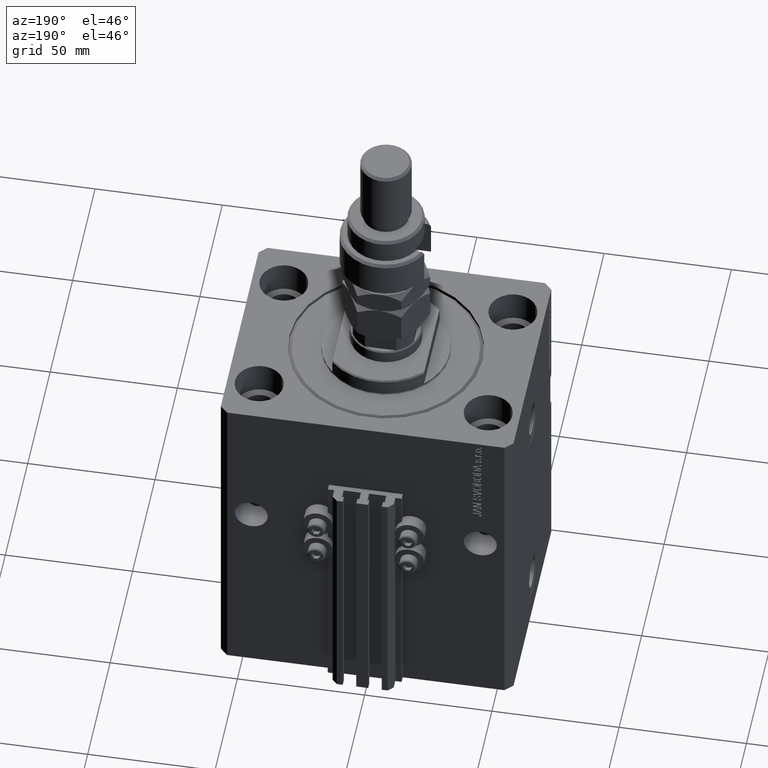
[diagram: clean part render]
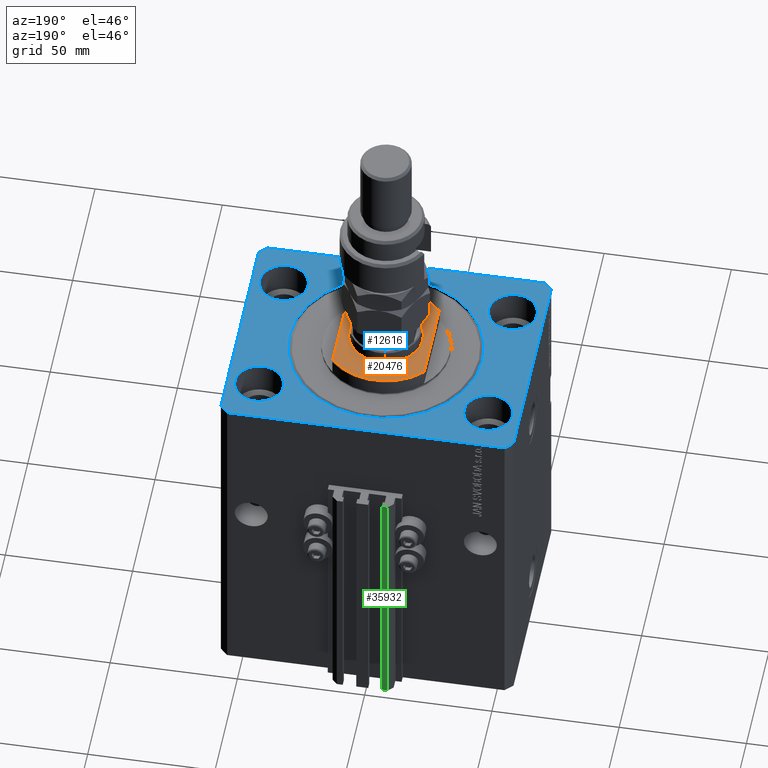
[diagram: same view with three faces highlighted in distinct colors, each labeled with its STEP entity id]
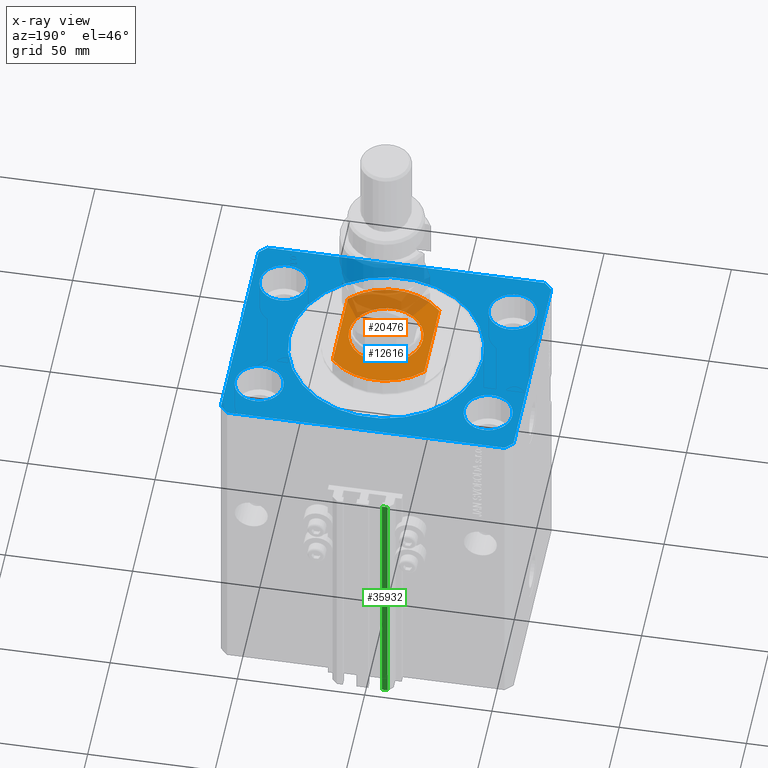
[diagram: x-ray of the same camera — body ghosted, the three highlighted faces saturated]
A machine part, auxiliary view with three faces highlighted in distinct colors.
The next image is the same camera in x-ray (body ghosted, the three faces saturated) — at least one of them is partly hidden behind the body in this view.
Their STEP definitions:

[orange] entity #20476 — the highlighted planar face has unit normal (0, 0, 1).
#1348 = CIRCLE ( 'NONE', #13869, 14.49999999999999822 ) ;
#1612 = FACE_BOUND ( 'NONE', #47829, .T. ) ;
#2291 = DIRECTION ( 'NONE',  ( -1.000000000000000000, 0.000000000000000000, 0.000000000000000000 ) ) ;
#2575 = ORIENTED_EDGE ( 'NONE', *, *, #41688, .T. ) ;
#3102 = AXIS2_PLACEMENT_3D ( 'NONE', #45027, #21895, #37732 ) ;
#3404 = VERTEX_POINT ( 'NONE', #18417 ) ;
#4472 = VERTEX_POINT ( 'NONE', #41644 ) ;
#6607 = CIRCLE ( 'NONE', #35702, 24.49999999999996803 ) ;
#7623 = CARTESIAN_POINT ( 'NONE',  ( 0.000000000000000000, 0.000000000000000000, -7.000000000000000000 ) ) ;
#7687 = ORIENTED_EDGE ( 'NONE', *, *, #11814, .T. ) ;
#8296 = VERTEX_POINT ( 'NONE', #13204 ) ;
#9805 = LINE ( 'NONE', #49598, #28990 ) ;
#10671 = CARTESIAN_POINT ( 'NONE',  ( -18.00000000000000000, -16.62077013859462227, -7.000000000000000000 ) ) ;
#11814 = EDGE_CURVE ( 'NONE', #30605, #4472, #1348, .T. ) ;
#11978 = CIRCLE ( 'NONE', #47691, 14.49999999999999822 ) ;
#13204 = CARTESIAN_POINT ( 'NONE',  ( -18.00000000000000000, 16.62077013859462227, -7.000000000000000000 ) ) ;
#13304 = CARTESIAN_POINT ( 'NONE',  ( 18.00000000000000000, -16.62077013859462227, -7.000000000000000000 ) ) ;
#13869 = AXIS2_PLACEMENT_3D ( 'NONE', #48709, #36994, #16979 ) ;
#16979 = DIRECTION ( 'NONE',  ( -1.000000000000000000, 0.000000000000000000, 0.000000000000000000 ) ) ;
#17905 = EDGE_CURVE ( 'NONE', #29445, #48409, #34724, .T. ) ;
#18417 = CARTESIAN_POINT ( 'NONE',  ( 18.00000000000000000, 16.62077013859462227, -7.000000000000000000 ) ) ;
#19979 = EDGE_CURVE ( 'NONE', #8296, #48409, #9805, .T. ) ;
#20118 = DIRECTION ( 'NONE',  ( 0.000000000000000000, 0.000000000000000000, -1.000000000000000000 ) ) ;
#20476 = ADVANCED_FACE ( 'NONE', ( #1612, #49249 ), #21706, .T. ) ;
#21706 = PLANE ( 'NONE',  #28178 ) ;
#21895 = DIRECTION ( 'NONE',  ( 0.000000000000000000, 0.000000000000000000, -1.000000000000000000 ) ) ;
#22349 = EDGE_CURVE ( 'NONE', #8296, #3404, #6607, .T. ) ;
#25850 = DIRECTION ( 'NONE',  ( -1.000000000000000000, 0.000000000000000000, -0.000000000000000000 ) ) ;
#26635 = LINE ( 'NONE', #29517, #32719 ) ;
#28178 = AXIS2_PLACEMENT_3D ( 'NONE', #37541, #45353, #25850 ) ;
#28990 = VECTOR ( 'NONE', #49332, 1000.000000000000000 ) ;
#29445 = VERTEX_POINT ( 'NONE', #13304 ) ;
#29517 = CARTESIAN_POINT ( 'NONE',  ( 18.00000000000000000, -41.24318125460256113, -7.000000000000000000 ) ) ;
#30169 = CARTESIAN_POINT ( 'NONE',  ( 0.000000000000000000, 0.000000000000000000, -7.000000000000000000 ) ) ;
#30275 = ORIENTED_EDGE ( 'NONE', *, *, #22349, .T. ) ;
#30605 = VERTEX_POINT ( 'NONE', #44722 ) ;
#32719 = VECTOR ( 'NONE', #42474, 1000.000000000000000 ) ;
#34724 = CIRCLE ( 'NONE', #3102, 24.49999999999996803 ) ;
#35702 = AXIS2_PLACEMENT_3D ( 'NONE', #7623, #20118, #35960 ) ;
#35960 = DIRECTION ( 'NONE',  ( -1.000000000000000000, 0.000000000000000000, 0.000000000000000000 ) ) ;
#36994 = DIRECTION ( 'NONE',  ( -0.000000000000000000, -0.000000000000000000, 1.000000000000000000 ) ) ;
#37504 = EDGE_CURVE ( 'NONE', #3404, #29445, #26635, .T. ) ;
#37541 = CARTESIAN_POINT ( 'NONE',  ( 0.000000000000000000, 0.000000000000000000, -7.000000000000000000 ) ) ;
#37732 = DIRECTION ( 'NONE',  ( -1.000000000000000000, 0.000000000000000000, 0.000000000000000000 ) ) ;
#37784 = ORIENTED_EDGE ( 'NONE', *, *, #19979, .F. ) ;
#38225 = ORIENTED_EDGE ( 'NONE', *, *, #37504, .T. ) ;
#41644 = CARTESIAN_POINT ( 'NONE',  ( -14.49999999999999822, 0.000000000000000000, -7.000000000000000000 ) ) ;
#41688 = EDGE_CURVE ( 'NONE', #4472, #30605, #11978, .T. ) ;
#42474 = DIRECTION ( 'NONE',  ( 0.000000000000000000, -1.000000000000000000, -0.000000000000000000 ) ) ;
#44722 = CARTESIAN_POINT ( 'NONE',  ( 14.49999999999999822, 1.775737858763662015E-15, -7.000000000000000000 ) ) ;
#45027 = CARTESIAN_POINT ( 'NONE',  ( 0.000000000000000000, 0.000000000000000000, -7.000000000000000000 ) ) ;
#45353 = DIRECTION ( 'NONE',  ( 0.000000000000000000, 0.000000000000000000, -1.000000000000000000 ) ) ;
#45772 = DIRECTION ( 'NONE',  ( -0.000000000000000000, -0.000000000000000000, 1.000000000000000000 ) ) ;
#47681 = ORIENTED_EDGE ( 'NONE', *, *, #17905, .T. ) ;
#47691 = AXIS2_PLACEMENT_3D ( 'NONE', #30169, #45772, #2291 ) ;
#47829 = EDGE_LOOP ( 'NONE', ( #2575, #7687 ) ) ;
#48000 = EDGE_LOOP ( 'NONE', ( #30275, #38225, #47681, #37784 ) ) ;
#48409 = VERTEX_POINT ( 'NONE', #10671 ) ;
#48709 = CARTESIAN_POINT ( 'NONE',  ( 0.000000000000000000, 0.000000000000000000, -7.000000000000000000 ) ) ;
#49249 = FACE_OUTER_BOUND ( 'NONE', #48000, .T. ) ;
#49332 = DIRECTION ( 'NONE',  ( -0.000000000000000000, -1.000000000000000000, -0.000000000000000000 ) ) ;
#49598 = CARTESIAN_POINT ( 'NONE',  ( -18.00000000000000000, -41.24318125460256113, -7.000000000000000000 ) ) ;

[blue] entity #12616 — the highlighted planar face has unit normal (0, 0, 1).
#47 = AXIS2_PLACEMENT_3D ( 'NONE', #46858, #47120, #22957 ) ;
#279 = DIRECTION ( 'NONE',  ( 1.000000000000000000, 0.000000000000000000, 0.000000000000000000 ) ) ;
#474 = EDGE_LOOP ( 'NONE', ( #25661, #34148 ) ) ;
#592 = VERTEX_POINT ( 'NONE', #42433 ) ;
#1005 = EDGE_CURVE ( 'NONE', #6821, #3870, #40768, .T. ) ;
#1810 = EDGE_CURVE ( 'NONE', #16027, #29367, #30945, .T. ) ;
#2136 = CARTESIAN_POINT ( 'NONE',  ( -57.49999999999998579, 42.00000000000000711, 0.000000000000000000 ) ) ;
#3018 = FACE_OUTER_BOUND ( 'NONE', #44952, .T. ) ;
#3266 = EDGE_CURVE ( 'NONE', #37729, #6821, #28719, .T. ) ;
#3429 = DIRECTION ( 'NONE',  ( 0.000000000000000000, 0.000000000000000000, 1.000000000000000000 ) ) ;
#3490 = DIRECTION ( 'NONE',  ( 1.000000000000000000, 0.000000000000000000, 0.000000000000000000 ) ) ;
#3524 = DIRECTION ( 'NONE',  ( 1.000000000000000000, 0.000000000000000000, -0.000000000000000000 ) ) ;
#3583 = VERTEX_POINT ( 'NONE', #49059 ) ;
#3693 = DIRECTION ( 'NONE',  ( 1.000000000000000000, 0.000000000000000000, 0.000000000000000000 ) ) ;
#3798 = PLANE ( 'NONE',  #23884 ) ;
#3870 = VERTEX_POINT ( 'NONE', #8433 ) ;
#3954 = EDGE_CURVE ( 'NONE', #18058, #37729, #12853, .T. ) ;
#4030 = VERTEX_POINT ( 'NONE', #6311 ) ;
#4601 = CARTESIAN_POINT ( 'NONE',  ( 57.50000000000000711, -41.99999999999998579, 0.000000000000000000 ) ) ;
#4814 = ORIENTED_EDGE ( 'NONE', *, *, #40554, .F. ) ;
#4980 = DIRECTION ( 'NONE',  ( 1.000000000000000000, 0.000000000000000000, 0.000000000000000000 ) ) ;
#5030 = CIRCLE ( 'NONE', #47, 38.00000000000000000 ) ;
#5096 = CIRCLE ( 'NONE', #15947, 9.500000000000001776 ) ;
#5139 = EDGE_CURVE ( 'NONE', #29367, #36956, #9992, .T. ) ;
#5379 = VECTOR ( 'NONE', #37016, 1000.000000000000000 ) ;
#5537 = DIRECTION ( 'NONE',  ( 1.000000000000000000, 1.273191542001326317E-16, 0.000000000000000000 ) ) ;
#5539 = CARTESIAN_POINT ( 'NONE',  ( 45.00000000000000000, 27.50000000000001776, 0.000000000000000000 ) ) ;
#5558 = ORIENTED_EDGE ( 'NONE', *, *, #29699, .F. ) ;
#6185 = EDGE_LOOP ( 'NONE', ( #47269, #4814 ) ) ;
#6311 = CARTESIAN_POINT ( 'NONE',  ( 38.00000000000000000, 0.000000000000000000, 0.000000000000000000 ) ) ;
#6423 = CARTESIAN_POINT ( 'NONE',  ( 57.50000000000055422, 41.99999999999997868, 0.000000000000000000 ) ) ;
#6672 = CIRCLE ( 'NONE', #20818, 9.500000000000001776 ) ;
#6759 = CARTESIAN_POINT ( 'NONE',  ( 45.00000000000000000, -27.49999999999999645, 0.000000000000000000 ) ) ;
#6821 = VERTEX_POINT ( 'NONE', #27410 ) ;
#7913 = CIRCLE ( 'NONE', #25358, 9.500000000000001776 ) ;
#8390 = CARTESIAN_POINT ( 'NONE',  ( 54.50000000000000711, -44.99999999999998579, 0.000000000000000000 ) ) ;
#8433 = CARTESIAN_POINT ( 'NONE',  ( 57.50000000000055422, 41.99999999999997868, 0.000000000000000000 ) ) ;
#8662 = VECTOR ( 'NONE', #16965, 1000.000000000000000 ) ;
#8872 = ORIENTED_EDGE ( 'NONE', *, *, #40244, .F. ) ;
#9483 = CIRCLE ( 'NONE', #31926, 9.500000000000001776 ) ;
#9539 = CARTESIAN_POINT ( 'NONE',  ( 54.50000000000000000, -27.49999999999999645, 0.000000000000000000 ) ) ;
#9992 = LINE ( 'NONE', #2136, #30328 ) ;
#10345 = VERTEX_POINT ( 'NONE', #9539 ) ;
#10429 = VERTEX_POINT ( 'NONE', #14463 ) ;
#10454 = DIRECTION ( 'NONE',  ( 1.000000000000000000, 0.000000000000000000, 0.000000000000000000 ) ) ;
#10965 = AXIS2_PLACEMENT_3D ( 'NONE', #5539, #44317, #29509 ) ;
#11312 = ORIENTED_EDGE ( 'NONE', *, *, #1005, .T. ) ;
#11638 = FACE_BOUND ( 'NONE', #15170, .T. ) ;
#12616 = ADVANCED_FACE ( 'NONE', ( #11638, #35285, #27510, #43351, #50904, #3018 ), #3798, .T. ) ;
#12653 = CIRCLE ( 'NONE', #22638, 38.00000000000000000 ) ;
#12798 = CARTESIAN_POINT ( 'NONE',  ( 54.50000000000058975, 45.00000000000002842, 0.000000000000000000 ) ) ;
#12853 = LINE ( 'NONE', #20413, #27773 ) ;
#13008 = DIRECTION ( 'NONE',  ( 1.000000000000000000, 0.000000000000000000, 0.000000000000000000 ) ) ;
#13862 = VECTOR ( 'NONE', #46293, 1000.000000000000114 ) ;
#14374 = EDGE_CURVE ( 'NONE', #39590, #38260, #46363, .T. ) ;
#14463 = CARTESIAN_POINT ( 'NONE',  ( -54.50000000000000000, 27.50000000000000355, 0.000000000000000000 ) ) ;
#14931 = EDGE_LOOP ( 'NONE', ( #37546, #18130 ) ) ;
#15170 = EDGE_LOOP ( 'NONE', ( #27124, #41802 ) ) ;
#15802 = VERTEX_POINT ( 'NONE', #19564 ) ;
#15947 = AXIS2_PLACEMENT_3D ( 'NONE', #6759, #25794, #38247 ) ;
#16027 = VERTEX_POINT ( 'NONE', #37974 ) ;
#16493 = CARTESIAN_POINT ( 'NONE',  ( -57.50000000000000711, -42.00000000000000711, 0.000000000000000000 ) ) ;
#16818 = CARTESIAN_POINT ( 'NONE',  ( -45.00000000000000000, -27.49999999999999645, 0.000000000000000000 ) ) ;
#16965 = DIRECTION ( 'NONE',  ( -1.000000000000000000, -2.546383084002639322E-16, 0.000000000000000000 ) ) ;
#17234 = DIRECTION ( 'NONE',  ( 0.000000000000000000, 0.000000000000000000, 1.000000000000000000 ) ) ;
#17295 = AXIS2_PLACEMENT_3D ( 'NONE', #16818, #45158, #40224 ) ;
#18058 = VERTEX_POINT ( 'NONE', #48096 ) ;
#18130 = ORIENTED_EDGE ( 'NONE', *, *, #31015, .F. ) ;
#18661 = CARTESIAN_POINT ( 'NONE',  ( 0.000000000000000000, 0.000000000000000000, 0.000000000000000000 ) ) ;
#18692 = AXIS2_PLACEMENT_3D ( 'NONE', #38025, #42946, #10454 ) ;
#19432 = CIRCLE ( 'NONE', #18692, 9.500000000000001776 ) ;
#19434 = DIRECTION ( 'NONE',  ( 0.000000000000000000, 0.000000000000000000, 1.000000000000000000 ) ) ;
#19564 = CARTESIAN_POINT ( 'NONE',  ( -35.50000000000000000, 27.50000000000000355, 0.000000000000000000 ) ) ;
#20247 = DIRECTION ( 'NONE',  ( 6.443258625056715108E-15, 1.000000000000000000, 0.000000000000000000 ) ) ;
#20413 = CARTESIAN_POINT ( 'NONE',  ( -54.50000000000000711, -45.00000000000000000, 0.000000000000000000 ) ) ;
#20818 = AXIS2_PLACEMENT_3D ( 'NONE', #35963, #17234, #4980 ) ;
#21170 = AXIS2_PLACEMENT_3D ( 'NONE', #36980, #40112, #279 ) ;
#21182 = CARTESIAN_POINT ( 'NONE',  ( 54.50000000000000711, -44.99999999999998579, 0.000000000000000000 ) ) ;
#21878 = DIRECTION ( 'NONE',  ( -0.7071067811865483499, -0.7071067811865466846, 0.000000000000000000 ) ) ;
#22332 = DIRECTION ( 'NONE',  ( -0.7071067811865376918, 0.7071067811865574537, 0.000000000000000000 ) ) ;
#22638 = AXIS2_PLACEMENT_3D ( 'NONE', #35249, #34490, #3490 ) ;
#22777 = CARTESIAN_POINT ( 'NONE',  ( 54.50000000000000000, 27.50000000000001776, 0.000000000000000000 ) ) ;
#22957 = DIRECTION ( 'NONE',  ( 1.000000000000000000, 0.000000000000000000, 0.000000000000000000 ) ) ;
#23230 = ORIENTED_EDGE ( 'NONE', *, *, #32422, .T. ) ;
#23247 = ORIENTED_EDGE ( 'NONE', *, *, #3954, .T. ) ;
#23686 = EDGE_CURVE ( 'NONE', #38260, #39590, #6672, .T. ) ;
#23884 = AXIS2_PLACEMENT_3D ( 'NONE', #18661, #19434, #3524 ) ;
#24873 = EDGE_CURVE ( 'NONE', #4030, #592, #5030, .T. ) ;
#25358 = AXIS2_PLACEMENT_3D ( 'NONE', #41090, #41351, #13008 ) ;
#25635 = VERTEX_POINT ( 'NONE', #31659 ) ;
#25661 = ORIENTED_EDGE ( 'NONE', *, *, #37684, .F. ) ;
#25794 = DIRECTION ( 'NONE',  ( 0.000000000000000000, 0.000000000000000000, 1.000000000000000000 ) ) ;
#25909 = VERTEX_POINT ( 'NONE', #32045 ) ;
#27124 = ORIENTED_EDGE ( 'NONE', *, *, #23686, .F. ) ;
#27410 = CARTESIAN_POINT ( 'NONE',  ( 57.50000000000000711, -41.99999999999998579, 0.000000000000000000 ) ) ;
#27510 = FACE_BOUND ( 'NONE', #474, .T. ) ;
#27773 = VECTOR ( 'NONE', #5537, 1000.000000000000000 ) ;
#27782 = VECTOR ( 'NONE', #20247, 1000.000000000000000 ) ;
#28719 = LINE ( 'NONE', #21182, #5379 ) ;
#29367 = VERTEX_POINT ( 'NONE', #40870 ) ;
#29509 = DIRECTION ( 'NONE',  ( 1.000000000000000000, 0.000000000000000000, 0.000000000000000000 ) ) ;
#29699 = EDGE_CURVE ( 'NONE', #3583, #10345, #5096, .T. ) ;
#29741 = EDGE_LOOP ( 'NONE', ( #8872, #5558 ) ) ;
#30105 = EDGE_CURVE ( 'NONE', #25635, #31880, #30904, .T. ) ;
#30328 = VECTOR ( 'NONE', #45624, 1000.000000000000000 ) ;
#30904 = CIRCLE ( 'NONE', #10965, 9.500000000000001776 ) ;
#30945 = LINE ( 'NONE', #49939, #33637 ) ;
#31015 = EDGE_CURVE ( 'NONE', #592, #4030, #12653, .T. ) ;
#31447 = CARTESIAN_POINT ( 'NONE',  ( -35.50000000000000000, -27.49999999999999645, 0.000000000000000000 ) ) ;
#31659 = CARTESIAN_POINT ( 'NONE',  ( 35.50000000000000000, 27.50000000000001776, 0.000000000000000000 ) ) ;
#31880 = VERTEX_POINT ( 'NONE', #22777 ) ;
#31926 = AXIS2_PLACEMENT_3D ( 'NONE', #39091, #3429, #3693 ) ;
#32045 = CARTESIAN_POINT ( 'NONE',  ( 54.50000000000058975, 45.00000000000002842, 0.000000000000000000 ) ) ;
#32422 = EDGE_CURVE ( 'NONE', #3870, #25909, #50400, .T. ) ;
#33637 = VECTOR ( 'NONE', #21878, 1000.000000000000000 ) ;
#34148 = ORIENTED_EDGE ( 'NONE', *, *, #30105, .F. ) ;
#34239 = ORIENTED_EDGE ( 'NONE', *, *, #1810, .T. ) ;
#34490 = DIRECTION ( 'NONE',  ( 0.000000000000000000, 0.000000000000000000, 1.000000000000000000 ) ) ;
#35249 = CARTESIAN_POINT ( 'NONE',  ( 0.000000000000000000, 0.000000000000000000, 0.000000000000000000 ) ) ;
#35285 = FACE_BOUND ( 'NONE', #29741, .T. ) ;
#35963 = CARTESIAN_POINT ( 'NONE',  ( -45.00000000000000000, -27.49999999999999645, 0.000000000000000000 ) ) ;
#36548 = CARTESIAN_POINT ( 'NONE',  ( -54.50000000000000000, -27.49999999999999645, 0.000000000000000000 ) ) ;
#36719 = LINE ( 'NONE', #12798, #8662 ) ;
#36956 = VERTEX_POINT ( 'NONE', #16493 ) ;
#36980 = CARTESIAN_POINT ( 'NONE',  ( 45.00000000000000000, 27.50000000000001776, 0.000000000000000000 ) ) ;
#37016 = DIRECTION ( 'NONE',  ( 0.7071067811865483499, 0.7071067811865466846, 0.000000000000000000 ) ) ;
#37546 = ORIENTED_EDGE ( 'NONE', *, *, #24873, .F. ) ;
#37600 = EDGE_CURVE ( 'NONE', #15802, #10429, #9483, .T. ) ;
#37663 = EDGE_CURVE ( 'NONE', #25909, #16027, #36719, .T. ) ;
#37684 = EDGE_CURVE ( 'NONE', #31880, #25635, #39396, .T. ) ;
#37729 = VERTEX_POINT ( 'NONE', #8390 ) ;
#37974 = CARTESIAN_POINT ( 'NONE',  ( -54.49999999999999289, 45.00000000000000000, 0.000000000000000000 ) ) ;
#38025 = CARTESIAN_POINT ( 'NONE',  ( 45.00000000000000000, -27.49999999999999645, 0.000000000000000000 ) ) ;
#38247 = DIRECTION ( 'NONE',  ( 1.000000000000000000, 0.000000000000000000, 0.000000000000000000 ) ) ;
#38260 = VERTEX_POINT ( 'NONE', #31447 ) ;
#38418 = VECTOR ( 'NONE', #22332, 999.9999999999998863 ) ;
#39091 = CARTESIAN_POINT ( 'NONE',  ( -45.00000000000000000, 27.50000000000000355, 0.000000000000000000 ) ) ;
#39396 = CIRCLE ( 'NONE', #21170, 9.500000000000001776 ) ;
#39590 = VERTEX_POINT ( 'NONE', #36548 ) ;
#40112 = DIRECTION ( 'NONE',  ( 0.000000000000000000, 0.000000000000000000, 1.000000000000000000 ) ) ;
#40224 = DIRECTION ( 'NONE',  ( 1.000000000000000000, 0.000000000000000000, 0.000000000000000000 ) ) ;
#40244 = EDGE_CURVE ( 'NONE', #10345, #3583, #19432, .T. ) ;
#40554 = EDGE_CURVE ( 'NONE', #10429, #15802, #7913, .T. ) ;
#40768 = LINE ( 'NONE', #4601, #27782 ) ;
#40870 = CARTESIAN_POINT ( 'NONE',  ( -57.49999999999998579, 42.00000000000000711, 0.000000000000000000 ) ) ;
#41090 = CARTESIAN_POINT ( 'NONE',  ( -45.00000000000000000, 27.50000000000000355, 0.000000000000000000 ) ) ;
#41351 = DIRECTION ( 'NONE',  ( 0.000000000000000000, 0.000000000000000000, 1.000000000000000000 ) ) ;
#41802 = ORIENTED_EDGE ( 'NONE', *, *, #14374, .F. ) ;
#42127 = LINE ( 'NONE', #46033, #13862 ) ;
#42319 = ORIENTED_EDGE ( 'NONE', *, *, #47544, .T. ) ;
#42433 = CARTESIAN_POINT ( 'NONE',  ( -38.00000000000000000, 4.653657836759941941E-15, 0.000000000000000000 ) ) ;
#42946 = DIRECTION ( 'NONE',  ( 0.000000000000000000, 0.000000000000000000, 1.000000000000000000 ) ) ;
#43351 = FACE_BOUND ( 'NONE', #6185, .T. ) ;
#44317 = DIRECTION ( 'NONE',  ( 0.000000000000000000, 0.000000000000000000, 1.000000000000000000 ) ) ;
#44604 = ORIENTED_EDGE ( 'NONE', *, *, #5139, .T. ) ;
#44952 = EDGE_LOOP ( 'NONE', ( #45355, #34239, #44604, #42319, #23247, #47729, #11312, #23230 ) ) ;
#45158 = DIRECTION ( 'NONE',  ( 0.000000000000000000, 0.000000000000000000, 1.000000000000000000 ) ) ;
#45355 = ORIENTED_EDGE ( 'NONE', *, *, #37663, .T. ) ;
#45624 = DIRECTION ( 'NONE',  ( -2.478176394252581141E-16, -1.000000000000000000, 0.000000000000000000 ) ) ;
#46033 = CARTESIAN_POINT ( 'NONE',  ( -57.50000000000000711, -42.00000000000000711, 0.000000000000000000 ) ) ;
#46293 = DIRECTION ( 'NONE',  ( 0.7071067811865491270, -0.7071067811865459074, 0.000000000000000000 ) ) ;
#46363 = CIRCLE ( 'NONE', #17295, 9.500000000000001776 ) ;
#46858 = CARTESIAN_POINT ( 'NONE',  ( 0.000000000000000000, 0.000000000000000000, 0.000000000000000000 ) ) ;
#47120 = DIRECTION ( 'NONE',  ( 0.000000000000000000, 0.000000000000000000, 1.000000000000000000 ) ) ;
#47269 = ORIENTED_EDGE ( 'NONE', *, *, #37600, .F. ) ;
#47544 = EDGE_CURVE ( 'NONE', #36956, #18058, #42127, .T. ) ;
#47729 = ORIENTED_EDGE ( 'NONE', *, *, #3266, .T. ) ;
#48096 = CARTESIAN_POINT ( 'NONE',  ( -54.50000000000000711, -45.00000000000000000, 0.000000000000000000 ) ) ;
#49059 = CARTESIAN_POINT ( 'NONE',  ( 35.50000000000000000, -27.49999999999999645, 0.000000000000000000 ) ) ;
#49939 = CARTESIAN_POINT ( 'NONE',  ( -54.49999999999999289, 45.00000000000000000, 0.000000000000000000 ) ) ;
#50400 = LINE ( 'NONE', #6423, #38418 ) ;
#50904 = FACE_BOUND ( 'NONE', #14931, .T. ) ;

[green] entity #35932 — the highlighted planar face has unit normal (0, 1, 0).
#617 = CARTESIAN_POINT ( 'NONE',  ( -7.650000000000002132, 52.99999999999999289, -135.0000000000000000 ) ) ;
#805 = ORIENTED_EDGE ( 'NONE', *, *, #39337, .F. ) ;
#911 = ORIENTED_EDGE ( 'NONE', *, *, #16308, .T. ) ;
#4540 = DIRECTION ( 'NONE',  ( 0.000000000000000000, 1.000000000000000000, -0.000000000000000000 ) ) ;
#7023 = EDGE_CURVE ( 'NONE', #21922, #20755, #20880, .T. ) ;
#9242 = FACE_OUTER_BOUND ( 'NONE', #22809, .T. ) ;
#9618 = DIRECTION ( 'NONE',  ( 0.000000000000000000, 0.000000000000000000, 1.000000000000000000 ) ) ;
#10655 = CARTESIAN_POINT ( 'NONE',  ( -7.650000000000002132, 52.99999999999999289, -135.0000000000000000 ) ) ;
#13059 = DIRECTION ( 'NONE',  ( 0.000000000000000000, 0.000000000000000000, 1.000000000000000000 ) ) ;
#13345 = VECTOR ( 'NONE', #9618, 1000.000000000000000 ) ;
#16308 = EDGE_CURVE ( 'NONE', #21922, #17191, #19230, .T. ) ;
#17191 = VERTEX_POINT ( 'NONE', #46620 ) ;
#18206 = LINE ( 'NONE', #25246, #13345 ) ;
#19230 = LINE ( 'NONE', #10655, #30626 ) ;
#20755 = VERTEX_POINT ( 'NONE', #42585 ) ;
#20880 = LINE ( 'NONE', #48692, #24626 ) ;
#20959 = DIRECTION ( 'NONE',  ( 0.000000000000000000, 0.000000000000000000, 1.000000000000000000 ) ) ;
#21016 = LINE ( 'NONE', #31963, #22828 ) ;
#21922 = VERTEX_POINT ( 'NONE', #33728 ) ;
#22170 = CARTESIAN_POINT ( 'NONE',  ( -10.00000000000000000, 52.99999999999999289, -33.00000000000000000 ) ) ;
#22809 = EDGE_LOOP ( 'NONE', ( #805, #47028, #911, #34178 ) ) ;
#22828 = VECTOR ( 'NONE', #29084, 1000.000000000000000 ) ;
#24156 = EDGE_CURVE ( 'NONE', #17191, #28454, #18206, .T. ) ;
#24626 = VECTOR ( 'NONE', #13059, 1000.000000000000000 ) ;
#25246 = CARTESIAN_POINT ( 'NONE',  ( -10.00000000000000000, 52.99999999999999289, -135.0000000000000000 ) ) ;
#27304 = DIRECTION ( 'NONE',  ( -1.000000000000000000, 0.000000000000000000, 0.000000000000000000 ) ) ;
#28454 = VERTEX_POINT ( 'NONE', #22170 ) ;
#29084 = DIRECTION ( 'NONE',  ( -1.000000000000000000, 0.000000000000000000, 0.000000000000000000 ) ) ;
#30626 = VECTOR ( 'NONE', #27304, 1000.000000000000000 ) ;
#31963 = CARTESIAN_POINT ( 'NONE',  ( -7.650000000000002132, 52.99999999999999289, -33.00000000000000000 ) ) ;
#32656 = PLANE ( 'NONE',  #34321 ) ;
#33728 = CARTESIAN_POINT ( 'NONE',  ( -7.650000000000002132, 52.99999999999999289, -135.0000000000000000 ) ) ;
#34178 = ORIENTED_EDGE ( 'NONE', *, *, #24156, .T. ) ;
#34321 = AXIS2_PLACEMENT_3D ( 'NONE', #617, #4540, #20959 ) ;
#35932 = ADVANCED_FACE ( 'NONE', ( #9242 ), #32656, .T. ) ;
#39337 = EDGE_CURVE ( 'NONE', #20755, #28454, #21016, .T. ) ;
#42585 = CARTESIAN_POINT ( 'NONE',  ( -7.650000000000002132, 52.99999999999999289, -33.00000000000000000 ) ) ;
#46620 = CARTESIAN_POINT ( 'NONE',  ( -10.00000000000000000, 52.99999999999999289, -135.0000000000000000 ) ) ;
#47028 = ORIENTED_EDGE ( 'NONE', *, *, #7023, .F. ) ;
#48692 = CARTESIAN_POINT ( 'NONE',  ( -7.650000000000002132, 52.99999999999999289, -135.0000000000000000 ) ) ;